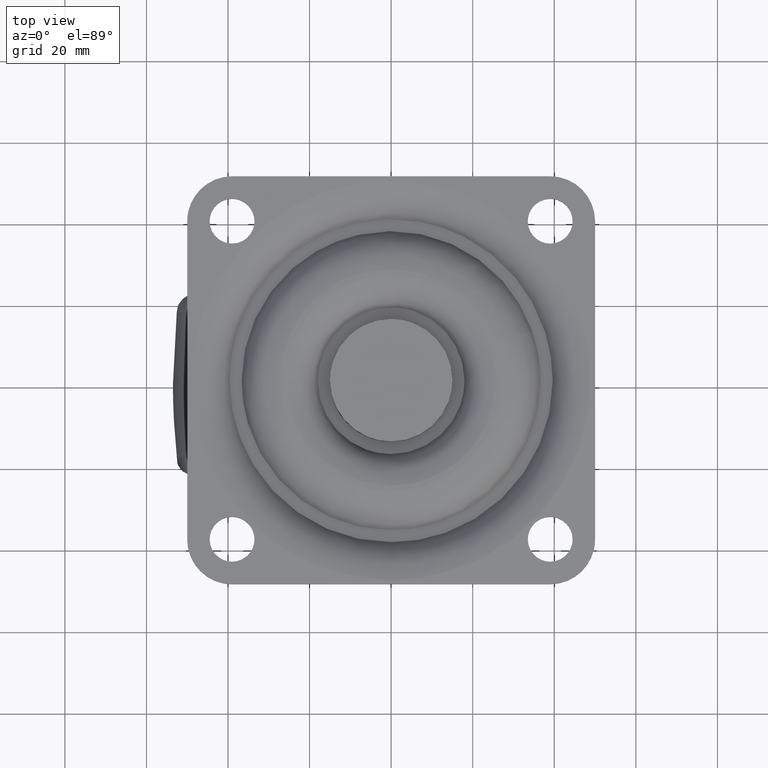
[diagram: clean part render]
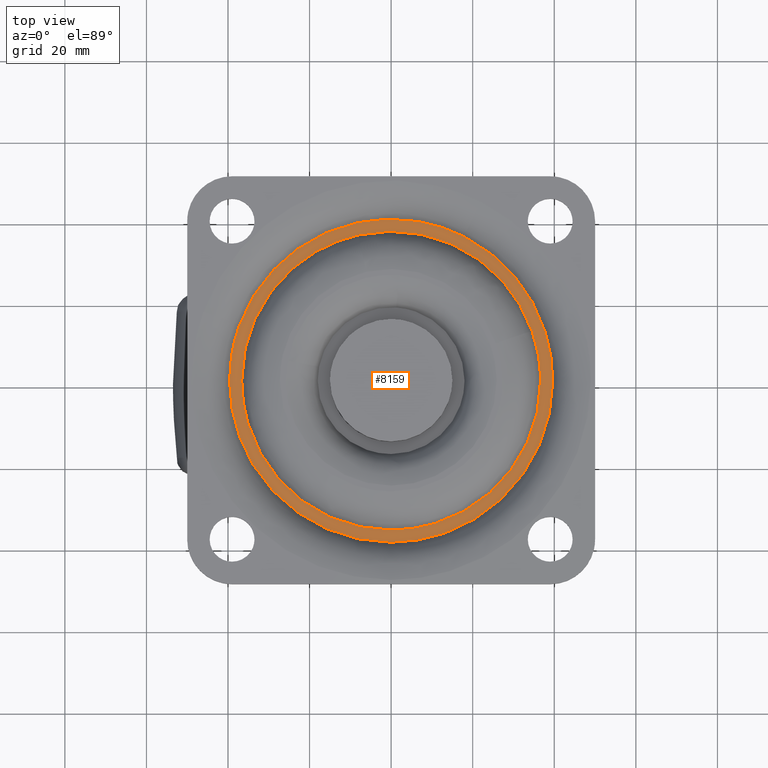
[diagram: same view with one face highlighted and labeled with its STEP entity id]
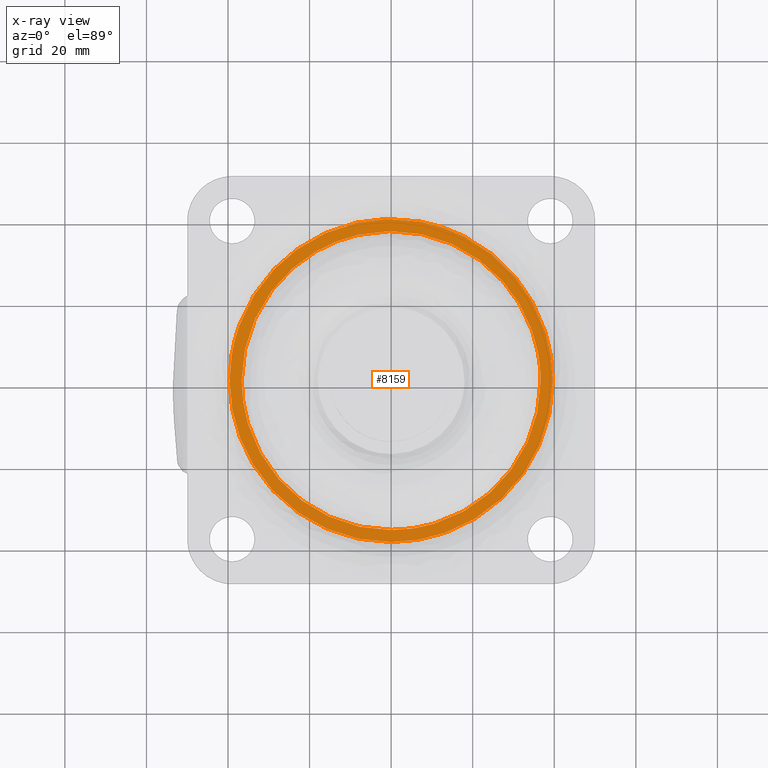
[diagram: x-ray of the same camera — body ghosted, the highlighted face saturated]
A machine part, top view. The second image highlights one B-rep face of the part: STEP entity #8159.
The next image is the same camera in x-ray: the body ghosted, the highlighted face saturated — about 0% of this face is hidden behind the body in this view.
In plain terms, the highlighted face is a freeform B-spline surface patch.
Its self-contained STEP definition (entity closure, byte-faithful):
#7247=CARTESIAN_POINT('',(17.853337082317211,35.358316898285572,-6.499999999174703));
#7248=VERTEX_POINT('',#7247);
#7249=CARTESIAN_POINT('',(39.610001500000003,0.0,-6.500000000000000));
#7250=VERTEX_POINT('',#7249);
#7251=CARTESIAN_POINT('',(17.853337082317211,35.358316898285572,-6.499999999174703));
#7252=CARTESIAN_POINT('',(20.291576900624179,34.127711796019177,-6.499999999267173));
#7253=CARTESIAN_POINT('',(23.756379477986279,31.901034690344058,-6.499999999398653));
#7254=CARTESIAN_POINT('',(28.570530168142149,27.626144217813259,-6.499999999581197));
#7255=CARTESIAN_POINT('',(31.900446175770501,23.709485876019770,-6.499999999707667));
#7256=CARTESIAN_POINT('',(34.543550489880289,19.515438739082679,-6.499999999807671));
#7257=CARTESIAN_POINT('',(36.401606786747003,15.795829018091570,-6.499999999878422));
#7258=CARTESIAN_POINT('',(37.946993655526633,11.688284348493839,-6.499999999936845));
#7259=CARTESIAN_POINT('',(39.257053236978059,6.315705201863444,-6.499999999986551));
#7260=CARTESIAN_POINT('',(39.610235908145839,2.332869342032723,-6.500000000000226));
#7261=CARTESIAN_POINT('',(39.610001500000003,0.0,-6.500000000000000));
#7262=B_SPLINE_CURVE_WITH_KNOTS('',3,(#7251,#7252,#7253,#7254,#7255,#7256,#7257,#7258,#7259,#7260,#7261),.UNSPECIFIED.,.F.,.U.,(4,1,1,1,1,1,1,1,4),(0.000000026842834,8.193442386877202,12.290180919865850,19.288750355501339,23.556171319857562,27.140787923038719,31.749619488398181,36.699845642463977,43.698405679027907),.UNSPECIFIED.);
#7263=EDGE_CURVE('',#7248,#7250,#7262,.T.);
#7265=CARTESIAN_POINT('',(-0.000002015680287,-39.610001499999953,-6.500000000000001));
#7266=VERTEX_POINT('',#7265);
#7267=CARTESIAN_POINT('',(39.610001500000003,0.0,-6.500000000000000));
#7268=CARTESIAN_POINT('',(39.610360513366388,-2.592504198163697,-6.499999999999999));
#7269=CARTESIAN_POINT('',(39.218789861354402,-6.562059125587096,-6.499999999999987));
#7270=CARTESIAN_POINT('',(37.802053910609423,-12.144992460966350,-6.500000000000015));
#7271=CARTESIAN_POINT('',(35.815074393987459,-17.296670066344031,-6.500000000000000));
#7272=CARTESIAN_POINT('',(33.207713590158093,-21.802059674255140,-6.499999999999989));
#7273=CARTESIAN_POINT('',(30.052897185252260,-25.921987100515629,-6.500000000000014));
#7274=CARTESIAN_POINT('',(27.365393571894469,-28.744780329302259,-6.499999999999965));
#7275=CARTESIAN_POINT('',(24.085800131791160,-31.521489206472459,-6.500000000000059));
#7276=CARTESIAN_POINT('',(20.288354827196208,-34.161385357777760,-6.499999999999952));
#7277=CARTESIAN_POINT('',(15.873863864825969,-36.417560950462438,-6.500000000000194));
#7278=CARTESIAN_POINT('',(11.438735703138210,-37.988941158954141,-6.499999999999959));
#7279=CARTESIAN_POINT('',(6.400034746363591,-39.234807917862270,-6.500000000000011));
#7280=CARTESIAN_POINT('',(2.592491295744519,-39.610347020091503,-6.499999999999966));
#7281=CARTESIAN_POINT('',(-0.000002015680287,-39.610001499999953,-6.500000000000001));
#7282=B_SPLINE_CURVE_WITH_KNOTS('',3,(#7267,#7268,#7269,#7270,#7271,#7272,#7273,#7274,#7275,#7276,#7277,#7278,#7279,#7280,#7281),.UNSPECIFIED.,.F.,.U.,(4,1,1,1,1,1,1,1,1,1,1,1,4),(0.000000034471938,7.777417950905104,11.909161800598920,17.256151672883231,24.304435223644081,27.464019384802711,32.810976332927993,35.970542714026720,40.345338459708060,46.664508529538871,50.796274963551419,54.441948527293668,62.219343600547951),.UNSPECIFIED.);
#7283=EDGE_CURVE('',#7250,#7266,#7282,.T.);
#7285=CARTESIAN_POINT('',(-39.610001500000003,0.0,-6.500000000000000));
#7286=VERTEX_POINT('',#7285);
#7287=CARTESIAN_POINT('',(-0.000002015680287,-39.610001499999953,-6.500000000000001));
#7288=CARTESIAN_POINT('',(-2.106391179626820,-39.610163055897530,-6.499999999999993));
#7289=CARTESIAN_POINT('',(-5.589959748124871,-39.331413516445579,-6.500000000000017));
#7290=CARTESIAN_POINT('',(-10.904025089533400,-38.189432962239223,-6.499999999999997));
#7291=CARTESIAN_POINT('',(-15.119890978312270,-36.710095015428728,-6.499999999999989));
#7292=CARTESIAN_POINT('',(-19.346515993576730,-34.647130462933333,-6.500000000000015));
#7293=CARTESIAN_POINT('',(-23.132733670380109,-32.282032005689402,-6.500000000000013));
#7294=CARTESIAN_POINT('',(-26.529998046095809,-29.511302058148889,-6.499999999999923));
#7295=CARTESIAN_POINT('',(-29.559202217847549,-26.463405083021492,-6.500000000000054));
#7296=CARTESIAN_POINT('',(-32.636751595124871,-22.690161997054130,-6.499999999999960));
#7297=CARTESIAN_POINT('',(-35.103180413202203,-18.575223455881950,-6.500000000000019));
#7298=CARTESIAN_POINT('',(-36.975626197894762,-14.350585105170319,-6.500000000000000));
#7299=CARTESIAN_POINT('',(-38.257303230846283,-10.587750109116660,-6.500000000000004));
#7300=CARTESIAN_POINT('',(-39.329771172902568,-5.670982654375093,-6.499999999999995));
#7301=CARTESIAN_POINT('',(-39.610110770639032,-2.025362110641151,-6.500000000000001));
#7302=CARTESIAN_POINT('',(-39.610001500000003,0.0,-6.500000000000000));
#7303=B_SPLINE_CURVE_WITH_KNOTS('',3,(#7287,#7288,#7289,#7290,#7291,#7292,#7293,#7294,#7295,#7296,#7297,#7298,#7299,#7300,#7301,#7302),.UNSPECIFIED.,.F.,.U.,(4,1,1,1,1,1,1,1,1,1,1,1,1,4),(0.000000034598756,6.319143526606261,10.450892507706660,16.283971110316550,19.686591525582969,24.547488383342859,29.651433634779568,32.810975133554422,37.428802995010422,44.234057170675086,47.150595920685660,51.282360343168570,56.143260749070080,62.219341328402997),.UNSPECIFIED.);
#7304=EDGE_CURVE('',#7266,#7286,#7303,.T.);
#7306=CARTESIAN_POINT('',(-37.183249509970317,13.651306704025300,-6.499999999389429));
#7307=VERTEX_POINT('',#7306);
#7308=CARTESIAN_POINT('',(-39.610001500000003,0.0,-6.500000000000000));
#7309=CARTESIAN_POINT('',(-39.610336619536469,2.613235984987678,-6.500000000000091));
#7310=CARTESIAN_POINT('',(-39.148475736190314,7.258779785094189,-6.499999999883860));
#7311=CARTESIAN_POINT('',(-37.883831550325922,11.743368492931269,-6.499999999565715));
#7312=CARTESIAN_POINT('',(-37.183249509970317,13.651306704025300,-6.499999999389429));
#7313=B_SPLINE_CURVE_WITH_KNOTS('',3,(#7308,#7309,#7310,#7311,#7312),.UNSPECIFIED.,.F.,.U.,(4,1,4),(2.938453E-009,7.839634637951827,13.937128401064101),.UNSPECIFIED.);
#7314=EDGE_CURVE('',#7286,#7307,#7313,.T.);
#7438=CARTESIAN_POINT('',(-37.183249509970317,13.651306704025300,-6.499999999389429));
#7439=CARTESIAN_POINT('',(-36.224365986070637,16.264435782699781,-6.499999999485667));
#7440=CARTESIAN_POINT('',(-34.292878098282117,20.188078641462301,-6.499999999619637));
#7441=CARTESIAN_POINT('',(-30.586716171230570,25.357828561410589,-6.499999999771031));
#7442=CARTESIAN_POINT('',(-26.752686705431550,29.416046598736120,-6.499999999870041));
#7443=CARTESIAN_POINT('',(-22.143514276729171,33.009842718122393,-6.499999999931515));
#7444=CARTESIAN_POINT('',(-17.066114744319002,35.898922656230710,-6.499999999951271));
#7445=CARTESIAN_POINT('',(-11.703348991259750,37.993722624135700,-6.499999999929520));
#7446=CARTESIAN_POINT('',(-6.771616742583173,39.118001639191100,-6.499999999873589));
#7447=CARTESIAN_POINT('',(-1.838387263898154,39.657172212540999,-6.499999999791237));
#7448=CARTESIAN_POINT('',(2.958157858510985,39.626440716567892,-6.499999999686698));
#7449=CARTESIAN_POINT('',(7.702460691083820,38.934665199024252,-6.499999999553431));
#7450=CARTESIAN_POINT('',(12.675051509754180,37.646549911674178,-6.499999999388627));
#7451=CARTESIAN_POINT('',(15.834615569880240,36.377861165655077,-6.499999999263920));
#7452=CARTESIAN_POINT('',(17.853337082317211,35.358316898285572,-6.499999999174703));
#7453=B_SPLINE_CURVE_WITH_KNOTS('',3,(#7438,#7439,#7440,#7441,#7442,#7443,#7444,#7445,#7446,#7447,#7448,#7449,#7450,#7451,#7452),.UNSPECIFIED.,.F.,.U.,(4,1,1,1,1,1,1,1,1,1,1,1,4),(0.000000022174589,8.350389090977842,13.047478171878179,19.049334328333209,25.051201207707638,30.531149818863341,36.532943003916003,42.273843047696353,45.666192872708713,51.407098248273250,56.626097490913857,60.018457273978548,66.803127810862520),.UNSPECIFIED.);
#7454=EDGE_CURVE('',#7307,#7248,#7453,.T.);
#7536=CARTESIAN_POINT('',(-8.124630916404209,35.732988037884333,-6.499999999940681));
#7537=VERTEX_POINT('',#7536);
#7551=CARTESIAN_POINT('',(-36.645000500000002,0.0,-6.500000000000000));
#7552=VERTEX_POINT('',#7551);
#7553=CARTESIAN_POINT('',(-36.645000500000002,0.0,-6.500000000000000));
#7554=CARTESIAN_POINT('',(-36.645393462190007,2.507062917209980,-6.500000000000009));
#7555=CARTESIAN_POINT('',(-36.287363348019881,5.978167045499439,-6.499999999999243));
#7556=CARTESIAN_POINT('',(-35.165006311700871,10.472114206073890,-6.499999999996923));
#7557=CARTESIAN_POINT('',(-33.971052648831233,13.940606611619600,-6.499999999994467));
#7558=CARTESIAN_POINT('',(-32.345280667599802,17.375546366463919,-6.499999999991012));
#7559=CARTESIAN_POINT('',(-30.226562566662949,20.831682550233719,-6.499999999986675));
#7560=CARTESIAN_POINT('',(-28.076102242561070,23.645480584095122,-6.499999999982166));
#7561=CARTESIAN_POINT('',(-25.261628872430201,26.651222489998890,-6.499999999976330));
#7562=CARTESIAN_POINT('',(-22.079322748532540,29.374022841807339,-6.499999999969698));
#7563=CARTESIAN_POINT('',(-18.467223944171060,31.734243645571429,-6.499999999962190));
#7564=CARTESIAN_POINT('',(-13.936581700957660,34.040935855797507,-6.499999999952803));
#7565=CARTESIAN_POINT('',(-10.506693367990129,35.191767305296217,-6.499999999945633));
#7566=CARTESIAN_POINT('',(-8.124630916404209,35.732988037884333,-6.499999999940681));
#7567=B_SPLINE_CURVE_WITH_KNOTS('',3,(#7553,#7554,#7555,#7556,#7557,#7558,#7559,#7560,#7561,#7562,#7563,#7564,#7565,#7566),.UNSPECIFIED.,.F.,.U.,(4,1,1,1,1,1,1,1,1,1,1,4),(0.000000042271353,7.521077724651626,10.413804200695351,13.885082997879991,18.513464229671801,21.791896754339081,26.034519719361001,29.120086814388479,34.134152947038643,38.569671175809908,42.040959308886087,49.369178685305812),.UNSPECIFIED.);
#7568=EDGE_CURVE('',#7552,#7537,#7567,.T.);
#7570=CARTESIAN_POINT('',(-0.000002097756319,-36.645000499999938,-6.500000000000000));
#7571=VERTEX_POINT('',#7570);
#7572=CARTESIAN_POINT('',(-0.000002097756319,-36.645000499999938,-6.500000000000000));
#7573=CARTESIAN_POINT('',(-2.548338193154866,-36.645428013463601,-6.499999999999965));
#7574=CARTESIAN_POINT('',(-6.895286497791931,-36.189624424551987,-6.500000000000082));
#7575=CARTESIAN_POINT('',(-11.875676629597271,-34.745256929690299,-6.499999999999918));
#7576=CARTESIAN_POINT('',(-15.691150803577059,-33.178494576091630,-6.500000000000093));
#7577=CARTESIAN_POINT('',(-18.880312206850761,-31.498942267537728,-6.499999999999953));
#7578=CARTESIAN_POINT('',(-22.601362241505289,-28.962791945814239,-6.499999999999982));
#7579=CARTESIAN_POINT('',(-25.705573917225738,-26.234871898620419,-6.500000000000121));
#7580=CARTESIAN_POINT('',(-28.567857762753881,-23.057224948016621,-6.499999999999896));
#7581=CARTESIAN_POINT('',(-30.687865376434878,-20.143041617479039,-6.500000000000046));
#7582=CARTESIAN_POINT('',(-32.576627192248253,-16.902289983348791,-6.499999999999991));
#7583=CARTESIAN_POINT('',(-33.961005730896723,-13.904166517904200,-6.500000000000006));
#7584=CARTESIAN_POINT('',(-35.213684535573272,-10.369043084756600,-6.500000000000008));
#7585=CARTESIAN_POINT('',(-36.317259578076651,-5.846053834636715,-6.499999999999959));
#7586=CARTESIAN_POINT('',(-36.645204967131278,-2.173565279810365,-6.500000000000080));
#7587=CARTESIAN_POINT('',(-36.645000500000002,0.0,-6.500000000000000));
#7588=B_SPLINE_CURVE_WITH_KNOTS('',3,(#7572,#7573,#7574,#7575,#7576,#7577,#7578,#7579,#7580,#7581,#7582,#7583,#7584,#7585,#7586,#7587),.UNSPECIFIED.,.F.,.U.,(4,1,1,1,1,1,1,1,1,1,1,1,1,4),(0.000000040960266,7.644919474682375,13.041372828798909,15.514739419792150,20.011764783738890,23.834254752455600,29.005785377910641,32.378555017578769,36.650734478689273,39.798670961117381,43.621145504258337,46.544221362194342,51.041255302155790,57.561921296272068),.UNSPECIFIED.);
#7589=EDGE_CURVE('',#7571,#7552,#7588,.T.);
#7591=CARTESIAN_POINT('',(36.645000500000002,0.0,-6.500000000000000));
#7592=VERTEX_POINT('',#7591);
#7593=CARTESIAN_POINT('',(36.645000500000002,0.0,-6.500000000000000));
#7594=CARTESIAN_POINT('',(36.645375964866552,-2.548336436123721,-6.500000000000014));
#7595=CARTESIAN_POINT('',(36.228940404672507,-6.520535865371792,-6.499999999999973));
#7596=CARTESIAN_POINT('',(34.921791332587397,-11.300170847360061,-6.500000000000020));
#7597=CARTESIAN_POINT('',(33.555995121882290,-14.873569470034971,-6.499999999999990));
#7598=CARTESIAN_POINT('',(31.945603600714769,-18.097470047828789,-6.499999999999945));
#7599=CARTESIAN_POINT('',(29.554078332649510,-21.823423861488241,-6.500000000000045));
#7600=CARTESIAN_POINT('',(26.720167488777609,-25.233651639967430,-6.499999999999859));
#7601=CARTESIAN_POINT('',(23.079422284386069,-28.594948040042269,-6.500000000000044));
#7602=CARTESIAN_POINT('',(19.033826031672380,-31.462908886401632,-6.499999999999988));
#7603=CARTESIAN_POINT('',(14.617016532834491,-33.720105312548583,-6.500000000000004));
#7604=CARTESIAN_POINT('',(9.946435587920194,-35.375159810137447,-6.500000000000001));
#7605=CARTESIAN_POINT('',(5.171541657736865,-36.401280556678287,-6.500000000000005));
#7606=CARTESIAN_POINT('',(1.723850208418676,-36.645081202773802,-6.499999999999997));
#7607=CARTESIAN_POINT('',(-0.000002097756319,-36.645000499999938,-6.500000000000000));
#7608=B_SPLINE_CURVE_WITH_KNOTS('',3,(#7593,#7594,#7595,#7596,#7597,#7598,#7599,#7600,#7601,#7602,#7603,#7604,#7605,#7606,#7607),.UNSPECIFIED.,.F.,.U.,(4,1,1,1,1,1,1,1,1,1,1,1,4),(0.000000040789885,7.644919788570945,11.917115649456170,14.840185713233691,19.112371458418721,22.710002336489030,28.106455730938318,32.378556348446693,37.550154921733807,42.946591825933879,47.218775573153849,52.390370366890011,57.561923660935967),.UNSPECIFIED.);
#7609=EDGE_CURVE('',#7592,#7571,#7608,.T.);
#7611=CARTESIAN_POINT('',(34.555899276761210,12.196149183065110,-6.500006137897774));
#7612=VERTEX_POINT('',#7611);
#7613=CARTESIAN_POINT('',(34.555899276761210,12.196149183065110,-6.500006137897774));
#7614=CARTESIAN_POINT('',(35.267308698092513,10.181055339677220,-6.500005093099215));
#7615=CARTESIAN_POINT('',(36.303561796661782,6.151861773093711,-6.500003036362189));
#7616=CARTESIAN_POINT('',(36.645138142531707,2.007476614879550,-6.500000981483672));
#7617=CARTESIAN_POINT('',(36.645000500000002,0.0,-6.500000000000000));
#7618=B_SPLINE_CURVE_WITH_KNOTS('',3,(#7613,#7614,#7615,#7616,#7617),.UNSPECIFIED.,.F.,.U.,(4,1,4),(2.626361E-009,6.410935571425568,12.433345291989751),.UNSPECIFIED.);
#7619=EDGE_CURVE('',#7612,#7592,#7618,.T.);
#7725=CARTESIAN_POINT('',(-8.124630916404209,35.732988037884333,-6.499999999940681));
#7726=CARTESIAN_POINT('',(-6.364434951813296,36.133275445359381,-6.500000169704191));
#7727=CARTESIAN_POINT('',(-2.509385509526960,36.714613657722552,-6.500000559468174));
#7728=CARTESIAN_POINT('',(3.273913300053986,36.659943660209493,-6.500001200548049));
#7729=CARTESIAN_POINT('',(8.282596981510507,35.792491058354173,-6.500001805634854));
#7730=CARTESIAN_POINT('',(12.207561969558171,34.605450755153257,-6.500002310649187));
#7731=CARTESIAN_POINT('',(15.879715007879661,33.119189542221868,-6.500002805981206));
#7732=CARTESIAN_POINT('',(19.420346831799279,31.179741598324430,-6.500003314369462));
#7733=CARTESIAN_POINT('',(23.379070868559651,28.350688716253199,-6.500003922962301));
#7734=CARTESIAN_POINT('',(27.207045915307390,24.796364786778479,-6.500004561242924));
#7735=CARTESIAN_POINT('',(30.401245238463350,20.660009544410268,-6.500005165028755));
#7736=CARTESIAN_POINT('',(32.870515119875627,16.386963138346449,-6.500005697185135));
#7737=CARTESIAN_POINT('',(34.001392171212657,13.767459085745029,-6.500005981193477));
#7738=CARTESIAN_POINT('',(34.555899276761210,12.196149183065110,-6.500006137897774));
#7739=B_SPLINE_CURVE_WITH_KNOTS('',3,(#7725,#7726,#7727,#7728,#7729,#7730,#7731,#7732,#7733,#7734,#7735,#7736,#7737,#7738),.UNSPECIFIED.,.F.,.U.,(4,1,1,1,1,1,1,1,1,1,1,4),(0.000000043328889,5.415415035059674,11.664030488535690,17.287763372046040,20.620341855772580,23.952932430461392,29.160059334378090,32.700940489341122,38.532959584985448,44.781565456084138,48.322444444936963,53.321285465316024),.UNSPECIFIED.);
#7740=EDGE_CURVE('',#7537,#7612,#7739,.T.);
#8140=CARTESIAN_POINT('',(43.567039752645549,-43.566722456827002,-6.500000000000000));
#8141=CARTESIAN_POINT('',(-43.567042585773628,-43.566722456827002,-6.500000000000000));
#8142=CARTESIAN_POINT('',(43.567039752645549,43.560373013661362,-6.500000000000000));
#8143=CARTESIAN_POINT('',(-43.567042585773628,43.560373013661362,-6.500000000000000));
#8144=B_SPLINE_SURFACE_WITH_KNOTS('',1,1,((#8140,#8142),(#8141,#8143)),.UNSPECIFIED.,.F.,.F.,.U.,(2,2),(2,2),(0.0,87.134082338419176),(0.0,87.127095470488371),.UNSPECIFIED.);
#8145=ORIENTED_EDGE('',*,*,#7283,.F.);
#8146=ORIENTED_EDGE('',*,*,#7263,.F.);
#8147=ORIENTED_EDGE('',*,*,#7454,.F.);
#8148=ORIENTED_EDGE('',*,*,#7314,.F.);
#8149=ORIENTED_EDGE('',*,*,#7304,.F.);
#8150=EDGE_LOOP('',(#8145,#8146,#8147,#8148,#8149));
#8151=FACE_OUTER_BOUND('',#8150,.T.);
#8152=ORIENTED_EDGE('',*,*,#7619,.T.);
#8153=ORIENTED_EDGE('',*,*,#7609,.T.);
#8154=ORIENTED_EDGE('',*,*,#7589,.T.);
#8155=ORIENTED_EDGE('',*,*,#7568,.T.);
#8156=ORIENTED_EDGE('',*,*,#7740,.T.);
#8157=EDGE_LOOP('',(#8152,#8153,#8154,#8155,#8156));
#8158=FACE_BOUND('',#8157,.T.);
#8159=ADVANCED_FACE('',(#8151,#8158),#8144,.F.);